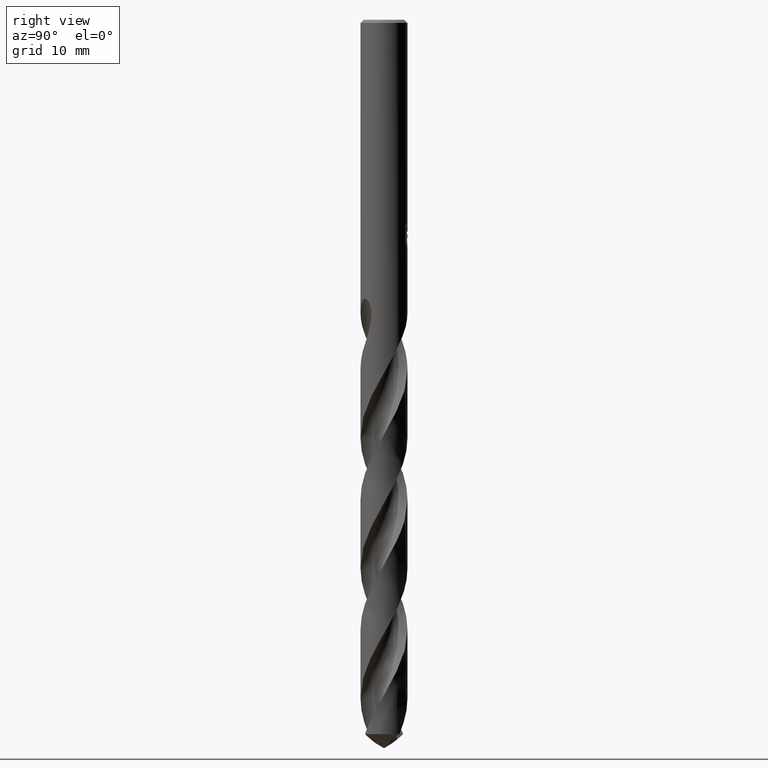
[diagram: clean part render]
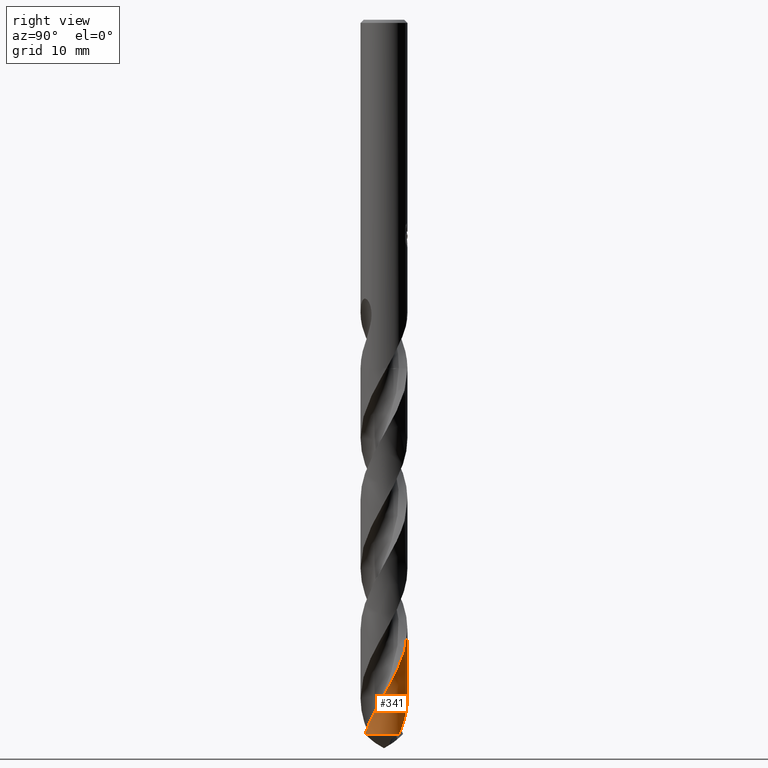
[diagram: same view with one face highlighted and labeled with its STEP entity id]
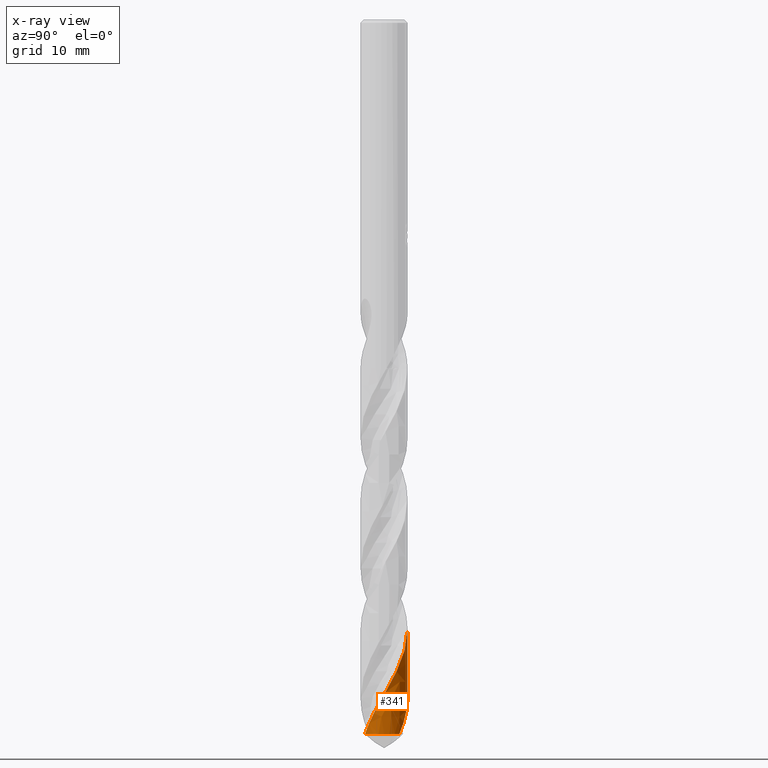
[diagram: x-ray of the same camera — body ghosted, the highlighted face saturated]
A machine part, right view. The second image highlights one B-rep face of the part: STEP entity #341.
The next image is the same camera in x-ray: the body ghosted, the highlighted face saturated — about 0% of this face is hidden behind the body in this view.
In plain terms, the highlighted conical surface has half-angle 0 deg.
Its self-contained STEP definition (entity closure, byte-faithful):
#341=ADVANCED_FACE('',(#869),#870,.T.);
#451=EDGE_CURVE('',#565,#771,#987,.T.);
#565=VERTEX_POINT('',#1109);
#585=EDGE_CURVE('',#743,#771,#1129,.T.);
#587=EDGE_CURVE('',#565,#657,#1131,.T.);
#599=EDGE_CURVE('',#743,#657,#1144,.T.);
#657=VERTEX_POINT('',#1209);
#743=VERTEX_POINT('',#1304);
#771=VERTEX_POINT('',#1336);
#869=FACE_OUTER_BOUND('',#2245,.T.);
#870=CONICAL_SURFACE('',#2246,2.99995,2.14144601515245E-006);
#987=CIRCLE('',#3841,3.0);
#1109=CARTESIAN_POINT('',(2.2745125000903,1.95616790867578,-91.1974181429173));
#1129=B_SPLINE_CURVE_WITH_KNOTS('',3,(#6730,#6731,#6732,#6733,#6734,#6735,#6736,#6737,#6738,#6739,#6740,#6741,#6742,#6743,#6744,#6745,#6746,#6747,#6748,#6749,#6750,#6751,#6752,#6753,#6754,#6755,#6756,#6757,#6758,#6759,#6760,#6761,#6762,#6763,#6764,#6765,#6766,#6767,#6768,#6769,#6770,#6771,#6772,#6773,#6774,#6775,#6776,#6777,#6778,#6779,#6780,#6781,#6782,#6783,#6784,#6785,#6786,#6787,#6788,#6789,#6790,#6791,#6792,#6793,#6794,#6795,#6796,#6797,#6798,#6799,#6800,#6801,#6802,#6803,#6804,#6805,#6806,#6807,#6808,#6809,#6810,#6811,#6812,#6813,#6814,#6815,#6816,#6817,#6818,#6819,#6820,#6821,#6822,#6823,#6824,#6825,#6826,#6827,#6828,#6829,#6830,#6831,#6832,#6833,#6834,#6835,#6836,#6837,#6838,#6839,#6840,#6841),.UNSPECIFIED.,.F.,.F.,(4,2,2,2,2,2,2,2,2,2,2,2,2,2,2,2,2,2,2,2,2,2,2,2,2,2,2,2,2,2,2,2,2,2,2,2,2,2,2,2,2,2,2,2,2,2,2,2,2,2,2,2,2,2,2,4),(0.0,0.572494951158947,1.82359099780544,2.42255770585194,3.60222100600977,4.78284834608599,5.07257895400081,6.43743896662307,7.27309726631694,8.44766000049982,8.80126579227505,10.0867637409892,10.7114236865127,12.0609044836649,12.9256425960565,14.0990841930642,14.4568973350308,15.7524062199249,16.3768446357501,17.7456146261023,18.56943700085,19.8211433847995,20.1249415379525,21.4607620633179,22.3509297042247,23.5237657938987,23.8825394218448,25.1924763815023,26.1441113458788,27.3190171899607,27.6638680252593,28.9837451173982,29.9097927988623,31.0848423998647,31.4282570425243,32.7359193778982,33.6884425473602,34.8641981882476,35.2033986360254,36.5301465694962,37.4343337722093,38.60808778833,38.9582932950154,40.2783048632536,41.1973655963923,42.3702465501988,42.7242071514487,44.0546999425372,44.9520049005276,46.0193016485695,46.8324724442076,47.6769222417737,48.4202174062024,49.7105221039015,50.6877983249832,53.6638566151624),.UNSPECIFIED.);
#1131=B_SPLINE_CURVE_WITH_KNOTS('',3,(#6844,#6845,#6846,#6847,#6848,#6849,#6850,#6851,#6852,#6853,#6854,#6855,#6856,#6857,#6858,#6859,#6860,#6861,#6862,#6863,#6864,#6865,#6866,#6867,#6868,#6869,#6870,#6871,#6872,#6873,#6874,#6875,#6876,#6877,#6878,#6879,#6880,#6881,#6882,#6883,#6884,#6885,#6886,#6887,#6888,#6889,#6890,#6891,#6892,#6893,#6894,#6895,#6896,#6897,#6898,#6899,#6900,#6901,#6902,#6903,#6904,#6905,#6906,#6907,#6908,#6909,#6910,#6911,#6912,#6913,#6914,#6915,#6916,#6917,#6918,#6919,#6920,#6921,#6922,#6923,#6924,#6925,#6926,#6927,#6928,#6929,#6930,#6931,#6932,#6933,#6934,#6935,#6936,#6937,#6938,#6939,#6940,#6941,#6942,#6943,#6944,#6945,#6946,#6947,#6948,#6949,#6950,#6951,#6952,#6953,#6954,#6955,#6956,#6957,#6958,#6959,#6960,#6961,#6962,#6963,#6964,#6965,#6966,#6967,#6968,#6969,#6970,#6971,#6972,#6973),.UNSPECIFIED.,.F.,.F.,(4,2,2,2,2,2,2,2,2,2,2,2,2,2,2,2,2,2,2,2,2,2,2,2,2,2,2,2,2,2,2,2,2,2,2,2,2,2,2,2,2,2,2,2,2,2,2,2,2,2,2,2,2,2,2,2,2,2,2,2,2,2,2,2,4),(0.0,3.02287721308186,3.96035503251826,4.89686697762241,5.83551648499087,6.77258362159715,7.71219575565281,8.64984330159205,9.59001128895867,10.5279406885881,11.1276705759869,11.1568325331997,12.85121806614,13.4005311617981,14.3422156641383,15.2827405210116,16.4695812143093,17.0610301762596,18.2194178325815,19.4054871811681,20.3472584959563,20.8124693230899,21.7483606031151,22.2199552201672,22.6854553278996,23.6213130118307,24.0932310622975,24.5596101600599,25.4961253110783,25.9683853533943,26.4353231057335,27.3530898775342,27.7908247414765,28.3844768243995,29.5224173753061,30.7144162674492,31.7951114705035,32.0514025402282,32.9882253765226,33.4616180490423,34.3971441103921,35.5936776538411,35.8470400437444,36.813282970395,37.2168214864337,37.8125237491826,38.7837224250146,39.9847754278381,40.9284157952355,41.8689841255479,42.8126206762945,43.2853842642113,43.3432051728048,45.102661006836,45.34678967894,46.2839217194995,46.7548844570402,47.6272270519839,48.3993855717625,49.7488307345827,50.7653187592066,50.9550034679283,52.3858833573958,53.1005719334983,53.8180536712004),.UNSPECIFIED.);
#1144=LINE('',#7893,#7894);
#1209=CARTESIAN_POINT('',(2.45370772301135E-011,2.99999024545571,-86.642297809353));
#1304=CARTESIAN_POINT('',(4.13384605381169E-014,2.99997147817592,-77.8784626881378));
#1336=CARTESIAN_POINT('',(1.75616763038384,-2.43225723433851,-91.1974181429173));
#2245=EDGE_LOOP('',(#11659,#11660,#11661,#11662));
#2246=AXIS2_PLACEMENT_3D('',#11663,#11664,#11665);
#3841=AXIS2_PLACEMENT_3D('',#11766,#11767,#11768);
#6730=CARTESIAN_POINT('',(-0.0649300444789005,2.99919725219845,-44.5045353086641));
#6731=CARTESIAN_POINT('',(0.0291366412256851,3.00123407076455,-44.6705594900349));
#6732=CARTESIAN_POINT('',(0.123269827804259,2.99884489596038,-44.8363290979425));
#6733=CARTESIAN_POINT('',(0.422342480634308,2.9771394801699,-45.3651339046317));
#6734=CARTESIAN_POINT('',(0.625365675183285,2.94118751074893,-45.7271818575132));
#6735=CARTESIAN_POINT('',(0.917659461304141,2.85779771723618,-46.2637921770107));
#6736=CARTESIAN_POINT('',(1.01093239007831,2.82615213260156,-46.4374081814791));
#6737=CARTESIAN_POINT('',(1.28286103048371,2.71869569535869,-46.9532030023539));
#6738=CARTESIAN_POINT('',(1.455834824799,2.63012345546762,-47.2942948693464));
#6739=CARTESIAN_POINT('',(1.78231989642019,2.42082846132127,-47.978895049942));
#6740=CARTESIAN_POINT('',(1.93514694491727,2.30050818951586,-48.3204451702406));
#6741=CARTESIAN_POINT('',(2.10971946107097,2.13326222687704,-48.7468180096853));
#6742=CARTESIAN_POINT('',(2.14331945924542,2.09950107808725,-48.8308109332914));
#6743=CARTESIAN_POINT('',(2.33050321861366,1.90224453945209,-49.3107079255715));
#6744=CARTESIAN_POINT('',(2.46621806920848,1.72267298656208,-49.7056965470931));
#6745=CARTESIAN_POINT('',(2.65071335131691,1.41140882913588,-50.3438870302089));
#6746=CARTESIAN_POINT('',(2.71254936717009,1.2885693676739,-50.5859125733228));
#6747=CARTESIAN_POINT('',(2.84049914629882,0.984024188332824,-51.1690503442263));
#6748=CARTESIAN_POINT('',(2.89793966572669,0.799214146509755,-51.5089732617366));
#6749=CARTESIAN_POINT('',(2.94904809179835,0.553165797593487,-51.9521698582012));
#6750=CARTESIAN_POINT('',(2.95921362647923,0.49591403708295,-52.0546637414967));
#6751=CARTESIAN_POINT('',(2.99859215639286,0.229357387775424,-52.5301266313669));
#6752=CARTESIAN_POINT('',(3.00730558496706,0.0175772593630815,-52.9023939469137));
#6753=CARTESIAN_POINT('',(2.9870583668684,-0.295887453694642,-53.4564739787933));
#6754=CARTESIAN_POINT('',(2.97517782701931,-0.39796991389124,-53.6374219215489));
#6755=CARTESIAN_POINT('',(2.92117023786764,-0.717988259071114,-54.2101342054818));
#6756=CARTESIAN_POINT('',(2.8600867887964,-0.932038677382013,-54.6008062630284));
#6757=CARTESIAN_POINT('',(2.72201032139564,-1.26902557872734,-55.2431284037681));
#6758=CARTESIAN_POINT('',(2.65881341429064,-1.39658665697186,-55.4935986269587));
#6759=CARTESIAN_POINT('',(2.48916879290094,-1.685463633559,-56.084995359362));
#6760=CARTESIAN_POINT('',(2.37565099054012,-1.84203424884381,-56.4246886849206));
#6761=CARTESIAN_POINT('',(2.20885453493423,-2.03075958801255,-56.8688919687512));
#6762=CARTESIAN_POINT('',(2.16859862092405,-2.07369280503983,-56.9726300474332));
#6763=CARTESIAN_POINT('',(1.97689965817717,-2.26645355099259,-57.452336158839));
#6764=CARTESIAN_POINT('',(1.81098995544028,-2.40110323198151,-57.8275741845417));
#6765=CARTESIAN_POINT('',(1.54601548167364,-2.57292916673103,-58.3846299816045));
#6766=CARTESIAN_POINT('',(1.45704009356045,-2.62433957174005,-58.5655603721509));
#6767=CARTESIAN_POINT('',(1.16521248155488,-2.77354055248331,-59.1439536460881));
#6768=CARTESIAN_POINT('',(0.953852629020552,-2.85315050321786,-59.540251007962));
#6769=CARTESIAN_POINT('',(0.604142392399323,-2.94159527749182,-60.1764523093608));
#6770=CARTESIAN_POINT('',(0.470691460783073,-2.96587226573567,-60.415166458638));
#6771=CARTESIAN_POINT('',(0.131611531708854,-3.00410371308647,-61.0175534586672));
#6772=CARTESIAN_POINT('',(-0.0747871771902356,-3.00606625005832,-61.3798660533878));
#6773=CARTESIAN_POINT('',(-0.329592341334468,-2.98219547378958,-61.8312172708192));
#6774=CARTESIAN_POINT('',(-0.379220726651426,-2.97629164446347,-61.9193335750692));
#6775=CARTESIAN_POINT('',(-0.646117550651384,-2.93775930193178,-62.3951874820517));
#6776=CARTESIAN_POINT('',(-0.859516188519299,-2.88256423371015,-62.7820927340561));
#6777=CARTESIAN_POINT('',(-1.201922098498,-2.75254049517267,-63.4280908801061));
#6778=CARTESIAN_POINT('',(-1.33481154514444,-2.69060389549732,-63.685998714483));
#6779=CARTESIAN_POINT('',(-1.63098688056463,-2.52521833249604,-64.2848425757898));
#6780=CARTESIAN_POINT('',(-1.7899695237675,-2.4151426146721,-64.6245016296218));
#6781=CARTESIAN_POINT('',(-1.98239929419995,-2.25238599901185,-65.0689892509857));
#6782=CARTESIAN_POINT('',(-2.02632952041388,-2.21294764710884,-65.1730486813551));
#6783=CARTESIAN_POINT('',(-2.22509160031733,-2.02362808809199,-65.6574167732721));
#6784=CARTESIAN_POINT('',(-2.36469212742638,-1.85859492635849,-66.036950287368));
#6785=CARTESIAN_POINT('',(-2.57310899245679,-1.5502641765675,-66.6933852753401));
#6786=CARTESIAN_POINT('',(-2.65048683827544,-1.41389599769906,-66.969086623582));
#6787=CARTESIAN_POINT('',(-2.79879390421294,-1.09717117153052,-67.5864663545455));
#6788=CARTESIAN_POINT('',(-2.86366558595495,-0.914609506973103,-67.9267435843864));
#6789=CARTESIAN_POINT('',(-2.9242807556301,-0.671944866429628,-68.3678544558846));
#6790=CARTESIAN_POINT('',(-2.936466316426,-0.616516252643434,-68.4678961772423));
#6791=CARTESIAN_POINT('',(-2.98766335703649,-0.347466618140632,-68.9511866568537));
#6792=CARTESIAN_POINT('',(-3.00498361838412,-0.130316950109981,-69.3336345107545));
#6793=CARTESIAN_POINT('',(-2.99428671337556,0.239174725066585,-69.9856269848675));
#6794=CARTESIAN_POINT('',(-2.97827366747077,0.390920321534487,-70.2539901202158));
#6795=CARTESIAN_POINT('',(-2.91597995705387,0.730859963389713,-70.8640743251124));
#6796=CARTESIAN_POINT('',(-2.86283781923777,0.91723165624855,-71.2044409408516));
#6797=CARTESIAN_POINT('',(-2.77141908772741,1.14986104897191,-71.6452430853233));
#6798=CARTESIAN_POINT('',(-2.7492664378654,1.20186402562746,-71.7448831524894));
#6799=CARTESIAN_POINT('',(-2.63577779639712,1.44869903297783,-72.224283150648));
#6800=CARTESIAN_POINT('',(-2.52509761638541,1.63400647232591,-72.603277185993));
#6801=CARTESIAN_POINT('',(-2.30113673040992,1.93109391045238,-73.2595127500233));
#6802=CARTESIAN_POINT('',(-2.19710976199148,2.04866705567087,-73.5355632939662));
#6803=CARTESIAN_POINT('',(-1.94530450685201,2.29193899049342,-74.1536352667408));
#6804=CARTESIAN_POINT('',(-1.79347327963088,2.41261399344357,-74.4942488030796));
#6805=CARTESIAN_POINT('',(-1.58414782629437,2.5482121375907,-74.9340999660881));
#6806=CARTESIAN_POINT('',(-1.53645329418278,2.57725038962304,-75.0325358026767));
#6807=CARTESIAN_POINT('',(-1.29839492211433,2.71323438302437,-75.5163289150274));
#6808=CARTESIAN_POINT('',(-1.09749691362123,2.80053877232821,-75.9008605508561));
#6809=CARTESIAN_POINT('',(-0.74669192025263,2.90936823198989,-76.5486929211351));
#6810=CARTESIAN_POINT('',(-0.601472680648149,2.94281806779495,-76.8108164704688));
#6811=CARTESIAN_POINT('',(-0.263525652413718,2.99460739999202,-77.4143627199116));
#6812=CARTESIAN_POINT('',(-0.0701820609427656,3.00537058538164,-77.754475383345));
#6813=CARTESIAN_POINT('',(0.180532955208262,2.99509028197739,-78.1970107472038));
#6814=CARTESIAN_POINT('',(0.238053141878309,2.99106796787033,-78.2986509859144));
#6815=CARTESIAN_POINT('',(0.511626883346179,2.96399791633129,-78.783753715457));
#6816=CARTESIAN_POINT('',(0.724933445818865,2.91917145440685,-79.1664059370033));
#6817=CARTESIAN_POINT('',(1.07540436733927,2.8046857332532,-79.8166992108859));
#6818=CARTESIAN_POINT('',(1.21545053524388,2.74689104233762,-80.0831509359677));
#6819=CARTESIAN_POINT('',(1.52284317299228,2.5919231099036,-80.6908585261191));
#6820=CARTESIAN_POINT('',(1.68646506867387,2.48857613102165,-81.0307799558949));
#6821=CARTESIAN_POINT('',(1.88511734159806,2.33443898272978,-81.4742216139847));
#6822=CARTESIAN_POINT('',(1.93010787469011,2.29738009361151,-81.5769666672305));
#6823=CARTESIAN_POINT('',(2.13891763989905,2.11492004357378,-82.0662788359557));
#6824=CARTESIAN_POINT('',(2.28761489933657,1.95313077880664,-82.4520025788083));
#6825=CARTESIAN_POINT('',(2.50489111863853,1.65748454010369,-83.0991173335151));
#6826=CARTESIAN_POINT('',(2.5834570077859,1.53214198463135,-83.3593209363671));
#6827=CARTESIAN_POINT('',(2.73452054979802,1.24625850670925,-83.9301234277261));
#6828=CARTESIAN_POINT('',(2.80281781135534,1.08398467500254,-84.2396513171618));
#6829=CARTESIAN_POINT('',(2.89744765175096,0.789082834161792,-84.7858892142673));
#6830=CARTESIAN_POINT('',(2.92976917820045,0.6590042836493,-85.0217991580546));
#6831=CARTESIAN_POINT('',(2.97772002582589,0.390420697865937,-85.5034206170693));
#6832=CARTESIAN_POINT('',(2.9926164760199,0.252024129476982,-85.7485207359943));
#6833=CARTESIAN_POINT('',(3.00247129020623,-0.00926501319575754,-86.2097623675842));
#6834=CARTESIAN_POINT('',(2.9995933726276,-0.131730292917431,-86.4253085103567));
#6835=CARTESIAN_POINT('',(2.971286022935,-0.465328487249481,-87.0161500745178));
#6836=CARTESIAN_POINT('',(2.93088728040316,-0.674554356739995,-87.3902924117885));
#6837=CARTESIAN_POINT('',(2.82159871749493,-1.03172368246944,-88.0490502683019));
#6838=CARTESIAN_POINT('',(2.76220224523087,-1.18155695421959,-88.3324459398261));
#6839=CARTESIAN_POINT('',(2.47462352294375,-1.76526759132025,-89.4812454738811));
#6840=CARTESIAN_POINT('',(2.15367170423874,-2.14524427731112,-90.3329510114319));
#6841=CARTESIAN_POINT('',(1.75616763038384,-2.43225723433851,-91.1974181429173));
#6844=CARTESIAN_POINT('',(2.2745125000903,1.95616790867578,-91.1974181429173));
#6845=CARTESIAN_POINT('',(1.95178560594948,2.33141213641964,-90.3197230087127));
#6846=CARTESIAN_POINT('',(1.53969526781352,2.62238588950042,-89.4596208159426));
#6847=CARTESIAN_POINT('',(0.931097511382226,2.85601706678834,-88.3106530577247));
#6848=CARTESIAN_POINT('',(0.783150014824995,2.90006291115013,-88.0377890638834));
#6849=CARTESIAN_POINT('',(0.482144461053264,2.96499067400443,-87.4941618549172));
#6850=CARTESIAN_POINT('',(0.329362038257862,2.98583465615679,-87.2237050181808));
#6851=CARTESIAN_POINT('',(0.0213896138285834,3.00388613897926,-86.6800277885248));
#6852=CARTESIAN_POINT('',(-0.133068338008731,3.00099834445047,-86.4070449084059));
#6853=CARTESIAN_POINT('',(-0.43968471699686,2.9715801466153,-85.8632450253277));
#6854=CARTESIAN_POINT('',(-0.591593887115169,2.9451119622743,-85.5927707356359));
#6855=CARTESIAN_POINT('',(-0.890608227999833,2.86890343525246,-85.0489864224338));
#6856=CARTESIAN_POINT('',(-1.03698734165482,2.81928266625213,-84.7759167052253));
#6857=CARTESIAN_POINT('',(-1.32029908360515,2.69822191515405,-84.2320062473324));
#6858=CARTESIAN_POINT('',(-1.45702515746327,2.62692306447889,-83.9615380788006));
#6859=CARTESIAN_POINT('',(-1.71883519025161,2.46360985111927,-83.417759197222));
#6860=CARTESIAN_POINT('',(-1.84325620454679,2.37193388824289,-83.1446821707079));
#6861=CARTESIAN_POINT('',(-2.07640864156834,2.17073050481697,-82.6008834104953));
#6862=CARTESIAN_POINT('',(-2.18502526386937,2.06137681091695,-82.3305109680451));
#6863=CARTESIAN_POINT('',(-2.34865877562743,1.86905909458071,-81.8855570546473));
#6864=CARTESIAN_POINT('',(-2.4086336433842,1.79108696199378,-81.7122399120592));
#6865=CARTESIAN_POINT('',(-2.46730637497515,1.706545577968,-81.5300458261057));
#6866=CARTESIAN_POINT('',(-2.47001629750631,1.70262092832896,-81.521600489264));
#6867=CARTESIAN_POINT('',(-2.63001009935888,1.46972035249953,-81.0213749304485));
#6868=CARTESIAN_POINT('',(-2.75476394024141,1.22000494522912,-80.5364720700844));
#6869=CARTESIAN_POINT('',(-2.87213050196165,0.871115787606875,-79.8858809115425));
#6870=CARTESIAN_POINT('',(-2.89702930033027,0.784364357204177,-79.7260860902337));
#6871=CARTESIAN_POINT('',(-2.95393423032074,0.545968378351639,-79.2934113795762));
#6872=CARTESIAN_POINT('',(-2.97818640265174,0.392768056008636,-79.0213650942303));
#6873=CARTESIAN_POINT('',(-3.00278889951049,0.083986242086189,-78.4754414662104));
#6874=CARTESIAN_POINT('',(-3.00311333570185,-0.0708628174427442,-78.2018078562685));
#6875=CARTESIAN_POINT('',(-2.97690313625806,-0.419399338878531,-77.5848124594511));
#6876=CARTESIAN_POINT('',(-2.94336076738802,-0.611938891181777,-77.2429820540882));
#6877=CARTESIAN_POINT('',(-2.86546192053302,-0.893523524697835,-76.7273358127406));
#6878=CARTESIAN_POINT('',(-2.83505413338315,-0.985747159308769,-76.5553990335172));
#6879=CARTESIAN_POINT('',(-2.73204355897753,-1.25374182042338,-76.048164439692));
#6880=CARTESIAN_POINT('',(-2.64711190301958,-1.42436444388088,-75.7146178427525));
#6881=CARTESIAN_POINT('',(-2.44350554515629,-1.7512963526532,-75.0354530043056));
#6882=CARTESIAN_POINT('',(-2.32465120766532,-1.9062523410465,-74.6908274830685));
#6883=CARTESIAN_POINT('',(-2.08578395234481,-2.16177054747089,-74.0744708846069));
#6884=CARTESIAN_POINT('',(-1.97156309634302,-2.26640509288565,-73.802807441351));
#6885=CARTESIAN_POINT('',(-1.78982855115204,-2.40875718198725,-73.3950351012256));
#6886=CARTESIAN_POINT('',(-1.7280338499165,-2.45346493121259,-73.259944437733));
#6887=CARTESIAN_POINT('',(-1.53685607400775,-2.58096858111917,-72.8539128602437));
#6888=CARTESIAN_POINT('',(-1.4026793876286,-2.65629713790053,-72.5839010200494));
#6889=CARTESIAN_POINT('',(-1.19284381425951,-2.75370434839226,-72.1763646462731));
#6890=CARTESIAN_POINT('',(-1.12136918727045,-2.78357123749478,-72.0399276985271));
#6891=CARTESIAN_POINT('',(-0.977359568001541,-2.83731366145454,-71.7684140310624));
#6892=CARTESIAN_POINT('',(-0.904920697490647,-2.86123881720389,-71.6332707547562));
#6893=CARTESIAN_POINT('',(-0.68425049907574,-2.92490510642848,-71.2273471970121));
#6894=CARTESIAN_POINT('',(-0.533673120694579,-2.95610749769452,-70.9574674252475));
#6895=CARTESIAN_POINT('',(-0.304269395656125,-2.98549253652778,-70.5500635388284));
#6896=CARTESIAN_POINT('',(-0.227087665581058,-2.99234895550446,-70.4136085815676));
#6897=CARTESIAN_POINT('',(-0.0734219154433014,-3.00003117803527,-70.1419046286062));
#6898=CARTESIAN_POINT('',(0.002978756097943,-3.00092539628128,-70.0065861016054));
#6899=CARTESIAN_POINT('',(0.232663007704195,-2.99484829793298,-69.6005078388351));
#6900=CARTESIAN_POINT('',(0.385626400657382,-2.97903518851347,-69.3306286147431));
#6901=CARTESIAN_POINT('',(0.613175573922633,-2.93764205074593,-68.9232268146037));
#6902=CARTESIAN_POINT('',(0.688818206418001,-2.92082698015422,-68.7867705006107));
#6903=CARTESIAN_POINT('',(0.837649675731676,-2.88164988773134,-68.5150011077674));
#6904=CARTESIAN_POINT('',(0.910773517173175,-2.85937647617461,-68.3796131542933));
#6905=CARTESIAN_POINT('',(1.12480221918664,-2.7851507982595,-67.9791537206051));
#6906=CARTESIAN_POINT('',(1.26293920330941,-2.72531545421635,-67.7148690124231));
#6907=CARTESIAN_POINT('',(1.45972929478511,-2.62183882796388,-67.3232435965345));
#6908=CARTESIAN_POINT('',(1.5220122979423,-2.58617675136374,-67.1968696446394));
#6909=CARTESIAN_POINT('',(1.6655069730773,-2.49704386821325,-66.898745125407));
#6910=CARTESIAN_POINT('',(1.74545428805682,-2.44182305853632,-66.7267126796643));
#6911=CARTESIAN_POINT('',(1.97037700161525,-2.2697849477601,-66.2263811476834));
#6912=CARTESIAN_POINT('',(2.10744486115069,-2.14314826011247,-65.8996844907858));
#6913=CARTESIAN_POINT('',(2.36241354053423,-1.85924187689404,-65.2269465712565));
#6914=CARTESIAN_POINT('',(2.47833601115005,-1.70166101458358,-64.8817398404847));
#6915=CARTESIAN_POINT('',(2.66870805322163,-1.38166520681616,-64.2255777586477));
#6916=CARTESIAN_POINT('',(2.7454638512158,-1.22198854933661,-63.9152570021991));
#6917=CARTESIAN_POINT('',(2.82241192488957,-1.01754064088619,-63.5289396776088));
#6918=CARTESIAN_POINT('',(2.83632308195794,-0.978093761880287,-63.4548316124671));
#6919=CARTESIAN_POINT('',(2.89727876052817,-0.792988229167128,-63.1101212257267));
#6920=CARTESIAN_POINT('',(2.9340210431926,-0.643985075063178,-62.8406564978569));
#6921=CARTESIAN_POINT('',(2.97195866502327,-0.416062752415318,-62.4336940963815));
#6922=CARTESIAN_POINT('',(2.98171275666878,-0.33914104475534,-62.2972062205355));
#6923=CARTESIAN_POINT('',(3.00184284018195,-0.109505401638041,-61.8904329849351));
#6924=CARTESIAN_POINT('',(3.00352761923683,0.0437896650393541,-61.619458089149));
#6925=CARTESIAN_POINT('',(2.98063362844829,0.392221254724984,-61.0038498856494));
#6926=CARTESIAN_POINT('',(2.94867028083947,0.585798736026577,-60.6606812393119));
#6927=CARTESIAN_POINT('',(2.88750723757669,0.814627144252673,-60.2417503006698));
#6928=CARTESIAN_POINT('',(2.87600627463024,0.8543435682078,-60.1684918556082));
#6929=CARTESIAN_POINT('',(2.81663070155218,1.0445633556192,-59.8160401848629));
#6930=CARTESIAN_POINT('',(2.75770242573491,1.19153048815941,-59.5381212505879));
#6931=CARTESIAN_POINT('',(2.65792666235088,1.39261892860612,-59.1427232158621));
#6932=CARTESIAN_POINT('',(2.62659975953726,1.45083530415149,-59.0263125375624));
#6933=CARTESIAN_POINT('',(2.54438713559454,1.59222615052994,-58.7377604575764));
#6934=CARTESIAN_POINT('',(2.49135756927314,1.67397126777632,-58.565312693376));
#6935=CARTESIAN_POINT('',(2.34185607864922,1.88160414490796,-58.1131181089529));
#6936=CARTESIAN_POINT('',(2.23903327201335,2.00289005116207,-57.8341618317886));
#6937=CARTESIAN_POINT('',(1.98830521720749,2.2549607943321,-57.2078460828565));
#6938=CARTESIAN_POINT('',(1.83643408096789,2.38025655835751,-56.8605640899906));
#6939=CARTESIAN_POINT('',(1.54544106987412,2.57584178000136,-56.2420718401781));
#6940=CARTESIAN_POINT('',(1.4109556129754,2.65189697220548,-55.9711330383412));
#6941=CARTESIAN_POINT('',(1.13190103370375,2.78244346103917,-55.4278493683838));
#6942=CARTESIAN_POINT('',(0.987920309291564,2.83675556974609,-55.1557550035271));
#6943=CARTESIAN_POINT('',(0.692295123213428,2.92301960508549,-54.6124770899173));
#6944=CARTESIAN_POINT('',(0.54111524158396,2.95474553557871,-54.3415852051741));
#6945=CARTESIAN_POINT('',(0.311496145113705,2.98470523442904,-53.9332765617089));
#6946=CARTESIAN_POINT('',(0.234618870154234,2.9917234873579,-53.797081105867));
#6947=CARTESIAN_POINT('',(0.148270131119231,2.99626805453737,-53.6439707046142));
#6948=CARTESIAN_POINT('',(0.138834076336664,2.9967202369664,-53.6272463381456));
#6949=CARTESIAN_POINT('',(-0.158723117465002,3.00956271978177,-53.1001337000503));
#6950=CARTESIAN_POINT('',(-0.44698549630179,2.98040340074613,-52.5974551553737));
#6951=CARTESIAN_POINT('',(-0.765471182682049,2.90088783736525,-52.0166399530805));
#6952=CARTESIAN_POINT('',(-0.804064047726295,2.89042946298096,-51.9458098049724));
#6953=CARTESIAN_POINT('',(-0.990157406036893,2.83597280701919,-51.6029393777144));
#6954=CARTESIAN_POINT('',(-1.13444688900198,2.78142319763624,-51.3321465858945));
#6955=CARTESIAN_POINT('',(-1.34429102724213,2.68297864982793,-50.9238760306654));
#6956=CARTESIAN_POINT('',(-1.4131180093815,2.64737022975309,-50.7874435978784));
#6957=CARTESIAN_POINT('',(-1.60512882383883,2.53842291937516,-50.3977569880624));
#6958=CARTESIAN_POINT('',(-1.72463494643065,2.45880337398049,-50.1438627737332));
#6959=CARTESIAN_POINT('',(-1.93850521242849,2.29299142446263,-49.6667111708351));
#6960=CARTESIAN_POINT('',(-2.03388601660022,2.20882857547719,-49.4433352654445));
#6961=CARTESIAN_POINT('',(-2.28052944983238,1.96162533619654,-48.8278327283997));
#6962=CARTESIAN_POINT('',(-2.41943237352092,1.78750076675098,-48.4353724311447));
#6963=CARTESIAN_POINT('',(-2.62712759458377,1.45796102001837,-47.7490948263014));
#6964=CARTESIAN_POINT('',(-2.70420580704021,1.3093991938965,-47.4556456699417));
#6965=CARTESIAN_POINT('',(-2.78043415356534,1.12675998831337,-47.1054035998568));
#6966=CARTESIAN_POINT('',(-2.79196577975234,1.0978757646855,-47.0503018255992));
#6967=CARTESIAN_POINT('',(-2.88682601095877,0.849078857204456,-46.5792505434982));
#6968=CARTESIAN_POINT('',(-2.94453601635397,0.620163307342151,-46.1675757998559));
#6969=CARTESIAN_POINT('',(-2.99004769630457,0.269939718399924,-45.544585451856));
#6970=CARTESIAN_POINT('',(-2.99832446526355,0.152595876205945,-45.336508327342));
#6971=CARTESIAN_POINT('',(-3.00107460315165,-0.0830015205390338,-44.9206778418055));
#6972=CARTESIAN_POINT('',(-2.99548726599325,-0.201044043133838,-44.7130484853281));
#6973=CARTESIAN_POINT('',(-2.9829414791003,-0.318528186484346,-44.5049284621469));
#7893=CARTESIAN_POINT('',(-3.67758535496837E-016,2.99995,-67.8487090714587));
#7894=VECTOR('',#11865,1.0);
#11659=ORIENTED_EDGE('',*,*,#599,.F.);
#11660=ORIENTED_EDGE('',*,*,#585,.T.);
#11661=ORIENTED_EDGE('',*,*,#451,.F.);
#11662=ORIENTED_EDGE('',*,*,#587,.T.);
#11663=CARTESIAN_POINT('',(0.0,0.0,-67.8487090714587));
#11664=DIRECTION('',(0.0,-0.0,-1.0));
#11665=DIRECTION('',(0.0,1.0,0.0));
#11766=CARTESIAN_POINT('',(0.0,0.0,-91.1974181429173));
#11767=DIRECTION('',(0.0,0.0,-1.0));
#11768=DIRECTION('',(0.0,1.0,0.0));
#11865=DIRECTION('',(-2.6224283965213E-022,2.14144601515082E-006,-0.999999999997707));